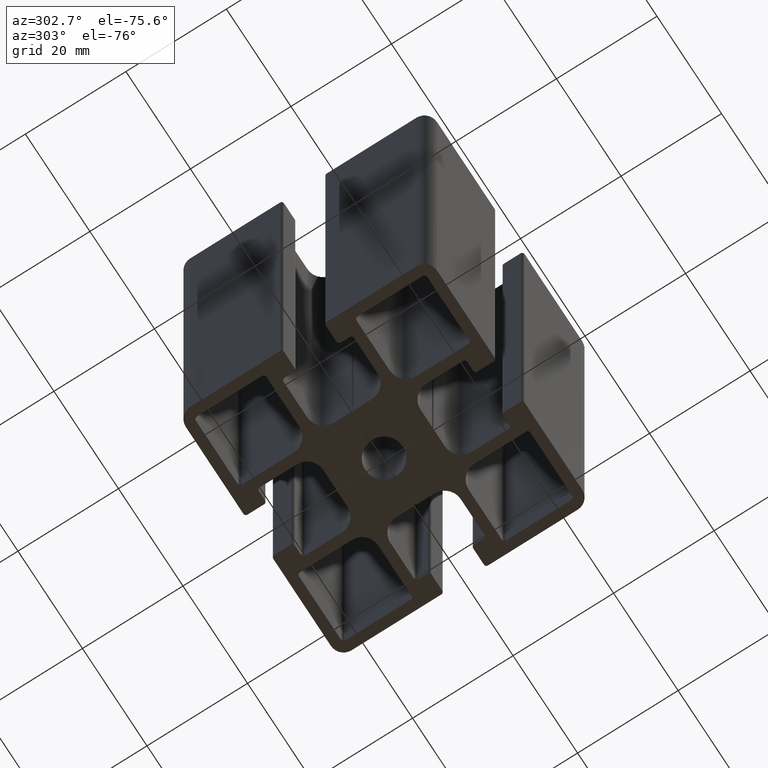
[diagram: clean part render]
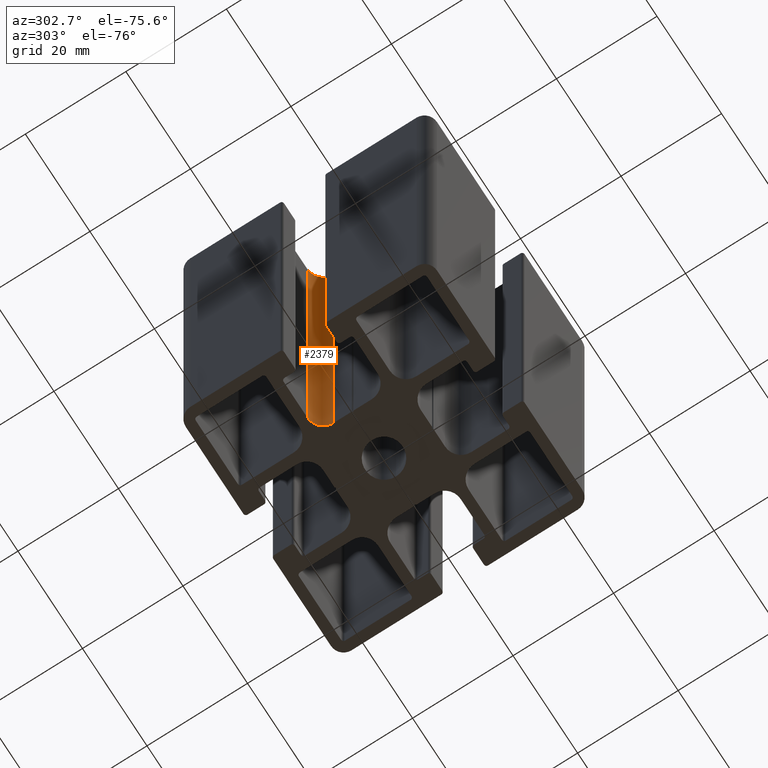
[diagram: same view with one face highlighted and labeled with its STEP entity id]
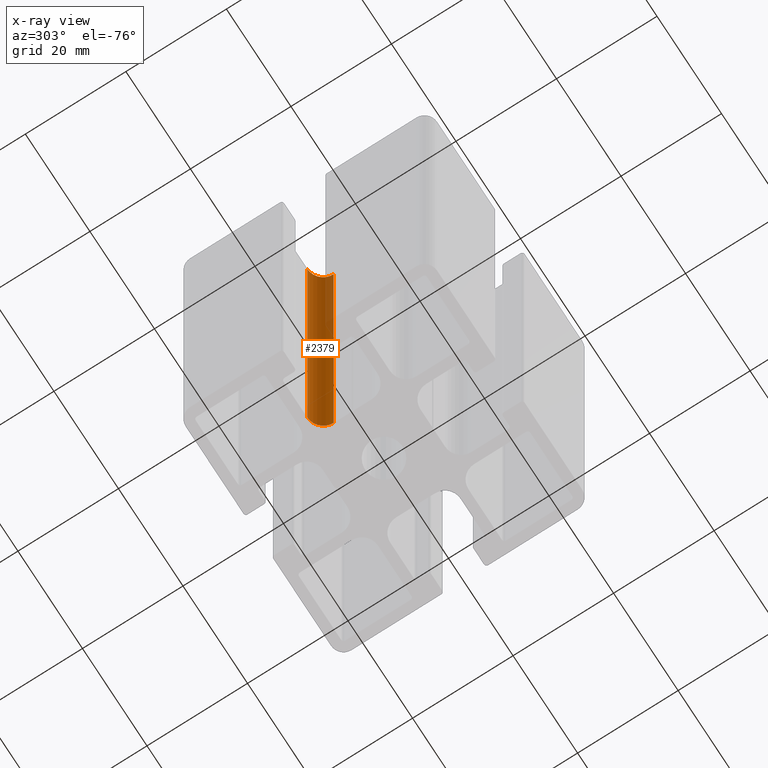
[diagram: x-ray of the same camera — body ghosted, the highlighted face saturated]
A machine part, auxiliary view. The second image highlights one B-rep face of the part: STEP entity #2379.
The next image is the same camera in x-ray: the body ghosted, the highlighted face saturated — about 11% of this face is hidden behind the body in this view.
In plain terms, the highlighted cylindrical surface (edge-blend (fillet) strip) has radius 3.2 mm, axis along (0, 0, 1).
Its self-contained STEP definition (entity closure, byte-faithful):
#199=FACE_OUTER_BOUND('',#319,.T.);
#319=EDGE_LOOP('',(#1945,#1946,#1947,#1948));
#565=LINE('',#3958,#809);
#566=LINE('',#3964,#810);
#809=VECTOR('',#3250,100.);
#810=VECTOR('',#3257,100.);
#925=CIRCLE('',#2597,3.19999999999997);
#926=CIRCLE('',#2598,3.19999999999997);
#1149=VERTEX_POINT('',#3954);
#1150=VERTEX_POINT('',#3956);
#1151=VERTEX_POINT('',#3960);
#1152=VERTEX_POINT('',#3962);
#1489=EDGE_CURVE('',#1149,#1150,#565,.T.);
#1490=EDGE_CURVE('',#1151,#1149,#925,.T.);
#1491=EDGE_CURVE('',#1152,#1150,#926,.T.);
#1492=EDGE_CURVE('',#1151,#1152,#566,.T.);
#1945=ORIENTED_EDGE('',*,*,#1490,.T.);
#1946=ORIENTED_EDGE('',*,*,#1489,.T.);
#1947=ORIENTED_EDGE('',*,*,#1491,.F.);
#1948=ORIENTED_EDGE('',*,*,#1492,.F.);
#2267=CYLINDRICAL_SURFACE('',#2596,3.19999999999997);
#2379=ADVANCED_FACE('',(#199),#2267,.F.);
#2596=AXIS2_PLACEMENT_3D('',#3959,#3251,#3252);
#2597=AXIS2_PLACEMENT_3D('',#3961,#3253,#3254);
#2598=AXIS2_PLACEMENT_3D('',#3963,#3255,#3256);
#3250=DIRECTION('',(0.,0.,1.));
#3251=DIRECTION('center_axis',(0.,0.,1.));
#3252=DIRECTION('ref_axis',(-1.,0.,0.));
#3253=DIRECTION('center_axis',(0.,0.,-1.));
#3254=DIRECTION('ref_axis',(-1.,0.,0.));
#3255=DIRECTION('center_axis',(0.,0.,-1.));
#3256=DIRECTION('ref_axis',(-1.,0.,0.));
#3257=DIRECTION('',(0.,0.,1.));
#3954=CARTESIAN_POINT('',(-9.70000000000006,3.80000000000156,0.));
#3956=CARTESIAN_POINT('',(-9.70000000000006,3.80000000000156,100.));
#3958=CARTESIAN_POINT('',(-9.70000000000006,3.80000000000156,0.));
#3959=CARTESIAN_POINT('Origin',(-12.9,3.80000000000156,0.));
#3960=CARTESIAN_POINT('',(-12.9,7.00000000000156,0.));
#3961=CARTESIAN_POINT('Origin',(-12.9,3.80000000000156,0.));
#3962=CARTESIAN_POINT('',(-12.9,7.00000000000156,100.));
#3963=CARTESIAN_POINT('Origin',(-12.9,3.80000000000156,100.));
#3964=CARTESIAN_POINT('',(-12.9,7.00000000000156,0.));